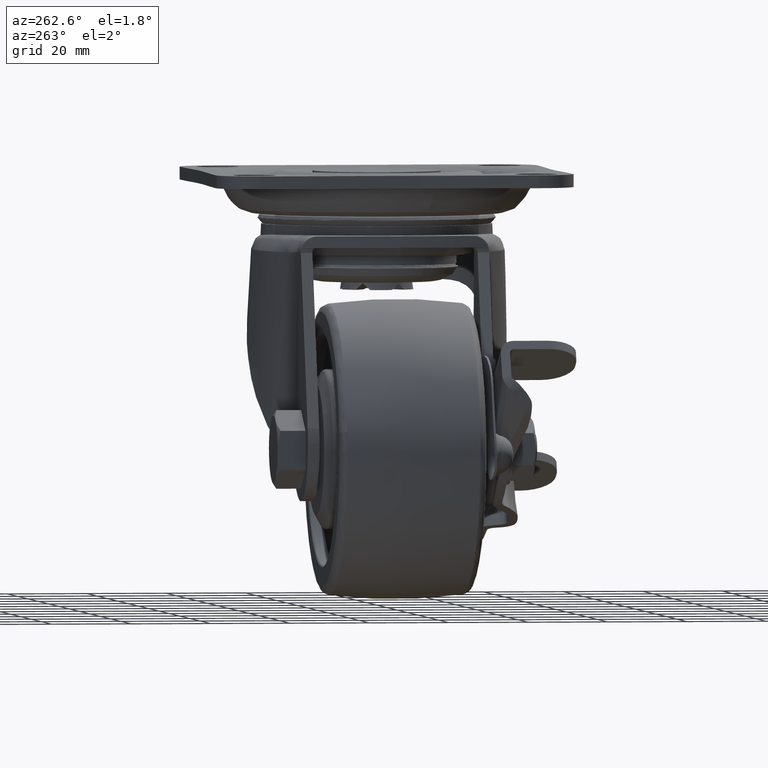
[diagram: clean part render]
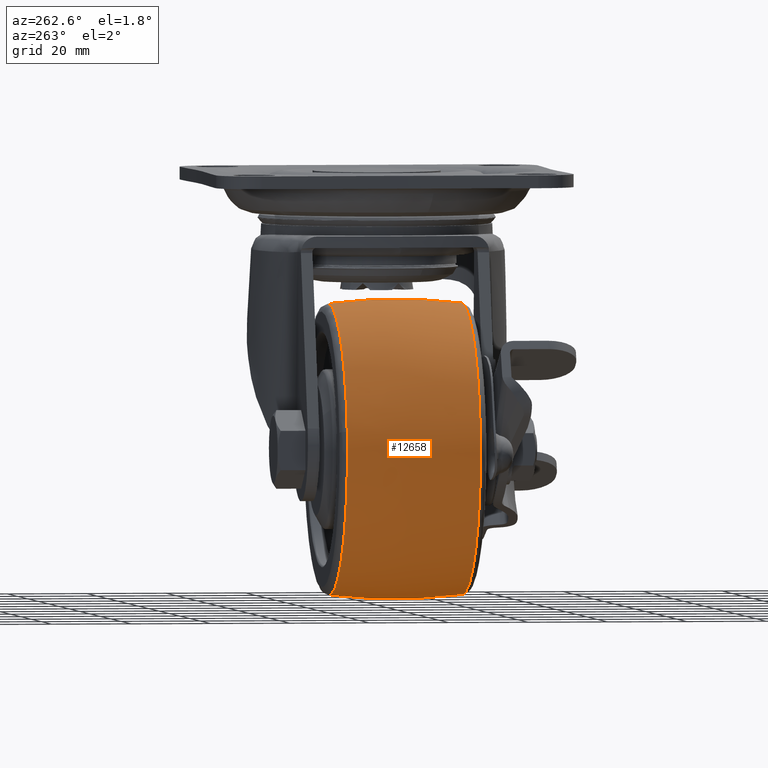
[diagram: same view with one face highlighted and labeled with its STEP entity id]
A machine part, auxiliary view. The second image highlights one B-rep face of the part: STEP entity #12658.
In plain terms, the highlighted face is a freeform B-spline surface patch.
Its self-contained STEP definition (entity closure, byte-faithful):
#12387=CARTESIAN_POINT('',(-72.128235926327392,-16.757815692353919,-73.064091588958263));
#12388=VERTEX_POINT('',#12387);
#12402=CARTESIAN_POINT('',(-36.0,-16.757815699509081,-104.915415876603210));
#12403=VERTEX_POINT('',#12402);
#12404=CARTESIAN_POINT('',(-72.128235926327392,-16.757815692353926,-73.064091588958263));
#12405=CARTESIAN_POINT('',(-68.104477953605226,-16.757815703580299,-104.915415880524090));
#12406=CARTESIAN_POINT('',(-36.0,-16.757815699509081,-104.915415876603210));
#12414=(BOUNDED_CURVE()B_SPLINE_CURVE(2,(#12404,#12405,#12406),.UNSPECIFIED.,.F.,.U.)B_SPLINE_CURVE_WITH_KNOTS((3,3),(0.771678743051415,1.0),.UNSPECIFIED.)CURVE()GEOMETRIC_REPRESENTATION_ITEM()RATIONAL_B_SPLINE_CURVE((0.953608358496482,0.732505008515182,1.0))REPRESENTATION_ITEM(''));
#12415=EDGE_CURVE('',#12388,#12403,#12414,.T.);
#12477=CARTESIAN_POINT('',(-36.0,-16.757815664529829,-32.084652395811773));
#12478=VERTEX_POINT('',#12477);
#12492=CARTESIAN_POINT('',(-36.0,-16.757815664529829,-32.084652395811773));
#12493=CARTESIAN_POINT('',(-72.415382042911460,-16.757815668119097,-32.084652399268499));
#12494=CARTESIAN_POINT('',(-72.415382073948464,-16.757815689679930,-68.500034143585097));
#12495=CARTESIAN_POINT('',(-72.415382075901135,-16.757815691036424,-70.791095718299303));
#12496=CARTESIAN_POINT('',(-72.128235926327392,-16.757815692353926,-73.064091588958263));
#12504=(BOUNDED_CURVE()B_SPLINE_CURVE(2,(#12492,#12493,#12494,#12495,#12496),.UNSPECIFIED.,.F.,.U.)B_SPLINE_CURVE_WITH_KNOTS((3,2,3),(0.500000000000000,0.750000000000000,0.771678743051415),.UNSPECIFIED.)CURVE()GEOMETRIC_REPRESENTATION_ITEM()RATIONAL_B_SPLINE_CURVE((1.0,0.707106781186548,1.0,0.974601772671365,0.953608358496482))REPRESENTATION_ITEM(''));
#12505=EDGE_CURVE('',#12478,#12388,#12504,.T.);
#12534=CARTESIAN_POINT('',(-36.0,16.757813987078400,-104.915416099203500));
#12535=VERTEX_POINT('',#12534);
#12536=CARTESIAN_POINT('',(-36.0,-16.757815699509084,-104.915415876603210));
#12537=CARTESIAN_POINT('',(-36.0,-0.000000870683335,-107.093777897851170));
#12538=CARTESIAN_POINT('',(-36.0,16.757813987078400,-104.915416099203480));
#12546=(BOUNDED_CURVE()B_SPLINE_CURVE(2,(#12536,#12537,#12538),.UNSPECIFIED.,.F.,.U.)B_SPLINE_CURVE_WITH_KNOTS((3,3),(0.421172285441174,0.578827706435888),.UNSPECIFIED.)CURVE()GEOMETRIC_REPRESENTATION_ITEM()RATIONAL_B_SPLINE_CURVE((0.859354120336097,0.852184341571776,0.859354119597274))REPRESENTATION_ITEM(''));
#12547=EDGE_CURVE('',#12403,#12535,#12546,.T.);
#12564=CARTESIAN_POINT('',(-36.0,16.757813987069341,-32.084651900796558));
#12565=VERTEX_POINT('',#12564);
#12581=CARTESIAN_POINT('',(-36.000000000000007,-16.757815664529833,-32.084652395811773));
#12582=CARTESIAN_POINT('',(-36.0,-0.000000853201907,-29.906290238301835));
#12583=CARTESIAN_POINT('',(-36.0,16.757813987069341,-32.084651900796558));
#12591=(BOUNDED_CURVE()B_SPLINE_CURVE(2,(#12581,#12582,#12583),.UNSPECIFIED.,.F.,.U.)B_SPLINE_CURVE_WITH_KNOTS((3,3),(0.421172285439159,0.578827706435845),.UNSPECIFIED.)CURVE()GEOMETRIC_REPRESENTATION_ITEM()RATIONAL_B_SPLINE_CURVE((0.859354120336280,0.852184341571686,0.859354119597271))REPRESENTATION_ITEM(''));
#12592=EDGE_CURVE('',#12478,#12565,#12591,.T.);
#12599=CARTESIAN_POINT('',(-36.0,-18.415803797313206,-32.311036138882471));
#12600=CARTESIAN_POINT('',(-36.000000000000007,-0.000003197279691,-29.675676657828280));
#12601=CARTESIAN_POINT('',(-36.0,18.415797531077015,-32.311035242164358));
#12602=CARTESIAN_POINT('',(-72.188997861118139,-18.415803797313217,-32.311036138882471));
#12603=CARTESIAN_POINT('',(-74.824357342172334,-0.000003197279691,-29.675676657828284));
#12604=CARTESIAN_POINT('',(-72.188998757836259,18.415797531077018,-32.311035242164351));
#12605=CARTESIAN_POINT('',(-72.188997861118139,-18.415803797313206,-68.500034000000610));
#12606=CARTESIAN_POINT('',(-74.824357342172334,-0.000003197279691,-68.500034000000596));
#12607=CARTESIAN_POINT('',(-72.188998757836259,18.415797531077015,-68.500034000000610));
#12608=CARTESIAN_POINT('',(-72.188997861118125,-18.415803797313217,-104.689031861118750));
#12609=CARTESIAN_POINT('',(-74.824357342172320,-0.000003197279691,-107.324391342172940));
#12610=CARTESIAN_POINT('',(-72.188998757836245,18.415797531077018,-104.689032757836870));
#12611=CARTESIAN_POINT('',(-36.0,-18.415803797313206,-104.689031861118720));
#12612=CARTESIAN_POINT('',(-36.000000000000007,-0.000003197279691,-107.324391342172960));
#12613=CARTESIAN_POINT('',(-36.0,18.415797531077015,-104.689032757836840));
#12621=(BOUNDED_SURFACE()B_SPLINE_SURFACE(2,2,((#12599,#12602,#12605,#12608,#12611),(#12600,#12603,#12606,#12609,#12612),(#12601,#12604,#12607,#12610,#12613)),.UNSPECIFIED.,.F.,.F.,.U.)B_SPLINE_SURFACE_WITH_KNOTS((3,3),(3,2,3),(0.0,37.018259021302313),(0.0,62.132034355964223,124.264068711928400),.UNSPECIFIED.)GEOMETRIC_REPRESENTATION_ITEM()RATIONAL_B_SPLINE_SURFACE(((0.860106157740242,0.608186896678432,0.860106157740242,0.608186896678432,0.860106157740242),(0.851432305288953,0.602053556791114,0.851432305288953,0.602053556791114,0.851432305288953),(0.860106154758775,0.608186894570216,0.860106154758775,0.608186894570216,0.860106154758775)))REPRESENTATION_ITEM('')SURFACE());
#12622=ORIENTED_EDGE('',*,*,#12547,.F.);
#12623=ORIENTED_EDGE('',*,*,#12415,.F.);
#12624=ORIENTED_EDGE('',*,*,#12505,.F.);
#12625=ORIENTED_EDGE('',*,*,#12592,.T.);
#12626=CARTESIAN_POINT('',(-72.002131413860070,16.757813975586821,-63.029511715430388));
#12627=VERTEX_POINT('',#12626);
#12628=CARTESIAN_POINT('',(-36.0,16.757813987069341,-32.084651900796558));
#12629=CARTESIAN_POINT('',(-67.300061251335649,16.757813981326162,-32.084651907590086));
#12630=CARTESIAN_POINT('',(-72.002131413860070,16.757813975586817,-63.029511715430381));
#12638=(BOUNDED_CURVE()B_SPLINE_CURVE(2,(#12628,#12629,#12630),.UNSPECIFIED.,.F.,.U.)B_SPLINE_CURVE_WITH_KNOTS((3,3),(0.500000000000000,0.724102415055018),.UNSPECIFIED.)CURVE()GEOMETRIC_REPRESENTATION_ITEM()RATIONAL_B_SPLINE_CURVE((1.0,0.737447689242670,0.945604233837286))REPRESENTATION_ITEM(''));
#12639=EDGE_CURVE('',#12565,#12627,#12638,.T.);
#12640=ORIENTED_EDGE('',*,*,#12639,.T.);
#12641=CARTESIAN_POINT('',(-72.002131413860070,16.757813975586817,-63.029511715430381));
#12642=CARTESIAN_POINT('',(-72.415382484163572,16.757813975960062,-65.749164076553569));
#12643=CARTESIAN_POINT('',(-72.415382487540953,16.757813976394250,-68.500034012632767));
#12644=CARTESIAN_POINT('',(-72.415382532249865,16.757813982141972,-104.915416105042710));
#12645=CARTESIAN_POINT('',(-36.0,16.757813987078400,-104.915416099203500));
#12653=(BOUNDED_CURVE()B_SPLINE_CURVE(2,(#12641,#12642,#12643,#12644,#12645),.UNSPECIFIED.,.F.,.U.)B_SPLINE_CURVE_WITH_KNOTS((3,2,3),(0.724102415055018,0.750000000000000,1.0),.UNSPECIFIED.)CURVE()GEOMETRIC_REPRESENTATION_ITEM()RATIONAL_B_SPLINE_CURVE((0.945604233837286,0.969659091943878,1.0,0.707106781186547,1.0))REPRESENTATION_ITEM(''));
#12654=EDGE_CURVE('',#12627,#12535,#12653,.T.);
#12655=ORIENTED_EDGE('',*,*,#12654,.T.);
#12656=EDGE_LOOP('',(#12622,#12623,#12624,#12625,#12640,#12655));
#12657=FACE_OUTER_BOUND('',#12656,.T.);
#12658=ADVANCED_FACE('',(#12657),#12621,.T.);